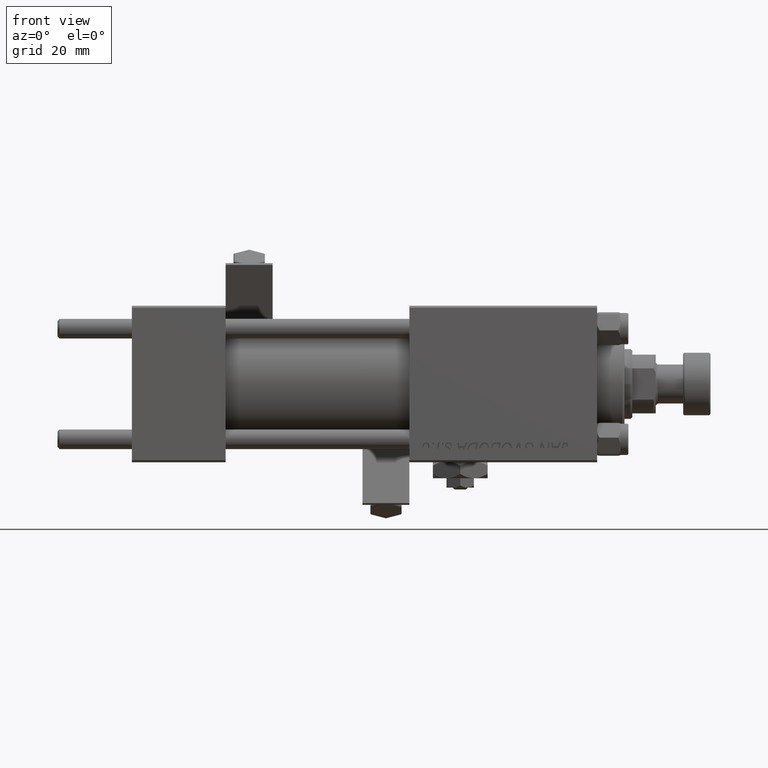
[diagram: clean part render]
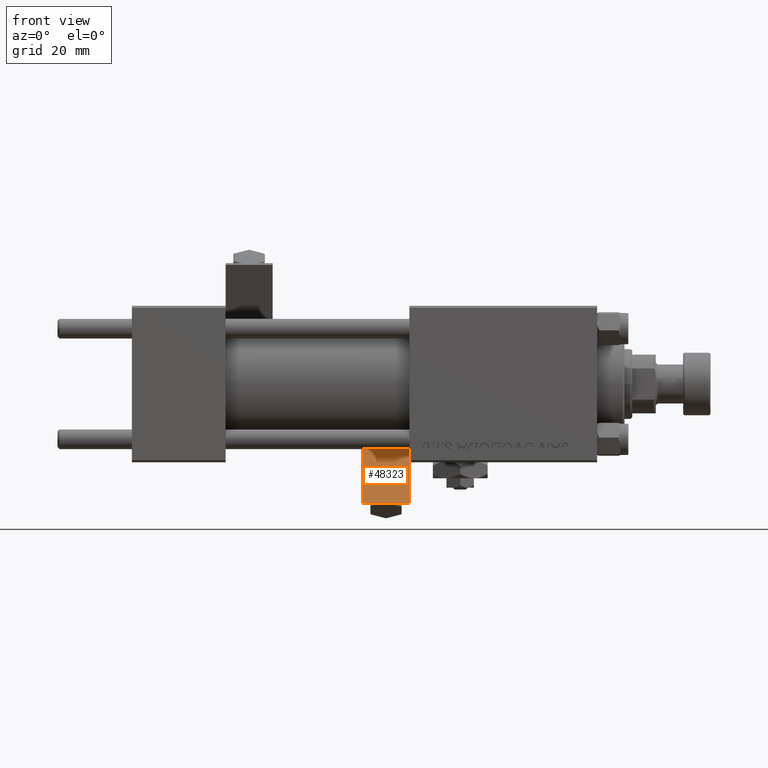
[diagram: same view with one face highlighted and labeled with its STEP entity id]
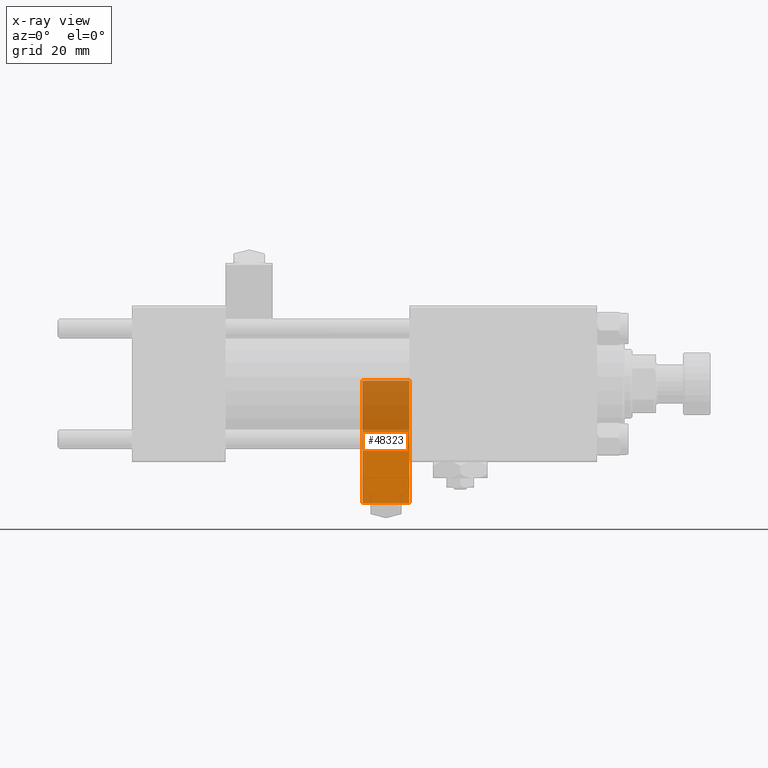
[diagram: x-ray of the same camera — body ghosted, the highlighted face saturated]
A machine part, front view. The second image highlights one B-rep face of the part: STEP entity #48323.
The next image is the same camera in x-ray: the body ghosted, the highlighted face saturated — about 56% of this face is hidden behind the body in this view.
In plain terms, the highlighted planar face has unit normal (-0, 0.8933, -0.4495).
Its self-contained STEP definition (entity closure, byte-faithful):
#1063 = EDGE_CURVE ( 'NONE', #41536, #15839, #27535, .T. ) ;
#2054 = CARTESIAN_POINT ( 'NONE',  ( -7.780000000000000249, 0.000000000000000000, 6.000000000000005329 ) ) ;
#6182 = EDGE_CURVE ( 'NONE', #25207, #41536, #8793, .T. ) ;
#8122 = PLANE ( 'NONE',  #51436 ) ;
#8300 = ORIENTED_EDGE ( 'NONE', *, *, #6182, .F. ) ;
#8793 = LINE ( 'NONE', #25190, #45680 ) ;
#10807 = LINE ( 'NONE', #43559, #45064 ) ;
#10877 = DIRECTION ( 'NONE',  ( 0.000000000000000000, 0.000000000000000000, 1.000000000000000000 ) ) ;
#11690 = EDGE_CURVE ( 'NONE', #35445, #15839, #49645, .T. ) ;
#11778 = DIRECTION ( 'NONE',  ( -1.000000000000000000, -0.000000000000000000, -0.000000000000000000 ) ) ;
#13184 = EDGE_CURVE ( 'NONE', #35445, #25207, #10807, .T. ) ;
#15187 = ORIENTED_EDGE ( 'NONE', *, *, #1063, .F. ) ;
#15839 = VERTEX_POINT ( 'NONE', #2054 ) ;
#16934 = DIRECTION ( 'NONE',  ( -1.000000000000000000, -0.000000000000000000, -0.000000000000000000 ) ) ;
#17345 = EDGE_LOOP ( 'NONE', ( #38254, #15187, #8300, #38135 ) ) ;
#18244 = VECTOR ( 'NONE', #10877, 1000.000000000000000 ) ;
#23146 = CARTESIAN_POINT ( 'NONE',  ( 27.24000000000000199, 0.000000000000000000, -6.000000000000000000 ) ) ;
#24524 = DIRECTION ( 'NONE',  ( 0.000000000000000000, -0.000000000000000000, 1.000000000000000000 ) ) ;
#25190 = CARTESIAN_POINT ( 'NONE',  ( 9.740000000000000213, 0.000000000000000000, -6.000000000000000000 ) ) ;
#25207 = VERTEX_POINT ( 'NONE', #23146 ) ;
#27199 = DIRECTION ( 'NONE',  ( 0.000000000000000000, 0.000000000000000000, -1.000000000000000000 ) ) ;
#27535 = LINE ( 'NONE', #39058, #18244 ) ;
#28801 = CARTESIAN_POINT ( 'NONE',  ( 27.24000000000000199, 0.000000000000000000, 6.000000000000005329 ) ) ;
#29338 = FACE_OUTER_BOUND ( 'NONE', #17345, .T. ) ;
#31308 = VECTOR ( 'NONE', #16934, 1000.000000000000000 ) ;
#35445 = VERTEX_POINT ( 'NONE', #28801 ) ;
#37070 = CARTESIAN_POINT ( 'NONE',  ( -7.780000000000000249, 0.000000000000000000, -6.000000000000000000 ) ) ;
#38135 = ORIENTED_EDGE ( 'NONE', *, *, #13184, .F. ) ;
#38254 = ORIENTED_EDGE ( 'NONE', *, *, #11690, .T. ) ;
#39058 = CARTESIAN_POINT ( 'NONE',  ( -7.780000000000000249, 0.000000000000000000, -6.000000000000000000 ) ) ;
#41144 = DIRECTION ( 'NONE',  ( -0.000000000000000000, 1.000000000000000000, 0.000000000000000000 ) ) ;
#41536 = VERTEX_POINT ( 'NONE', #37070 ) ;
#41661 = CARTESIAN_POINT ( 'NONE',  ( 9.740000000000000213, 0.000000000000000000, 6.000000000000005329 ) ) ;
#43559 = CARTESIAN_POINT ( 'NONE',  ( 27.24000000000000199, 0.000000000000000000, 6.000000000000005329 ) ) ;
#45064 = VECTOR ( 'NONE', #27199, 1000.000000000000000 ) ;
#45680 = VECTOR ( 'NONE', #11778, 1000.000000000000000 ) ;
#48323 = ADVANCED_FACE ( 'NONE', ( #29338 ), #8122, .F. ) ;
#49645 = LINE ( 'NONE', #50453, #31308 ) ;
#50453 = CARTESIAN_POINT ( 'NONE',  ( 9.740000000000000213, 0.000000000000000000, 6.000000000000005329 ) ) ;
#51436 = AXIS2_PLACEMENT_3D ( 'NONE', #41661, #41144, #24524 ) ;